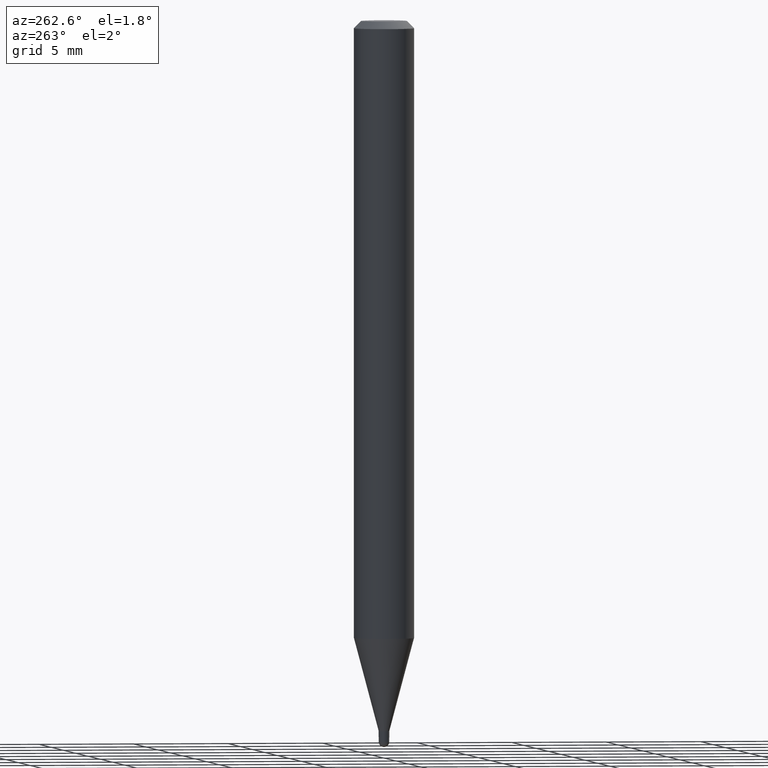
[diagram: clean part render]
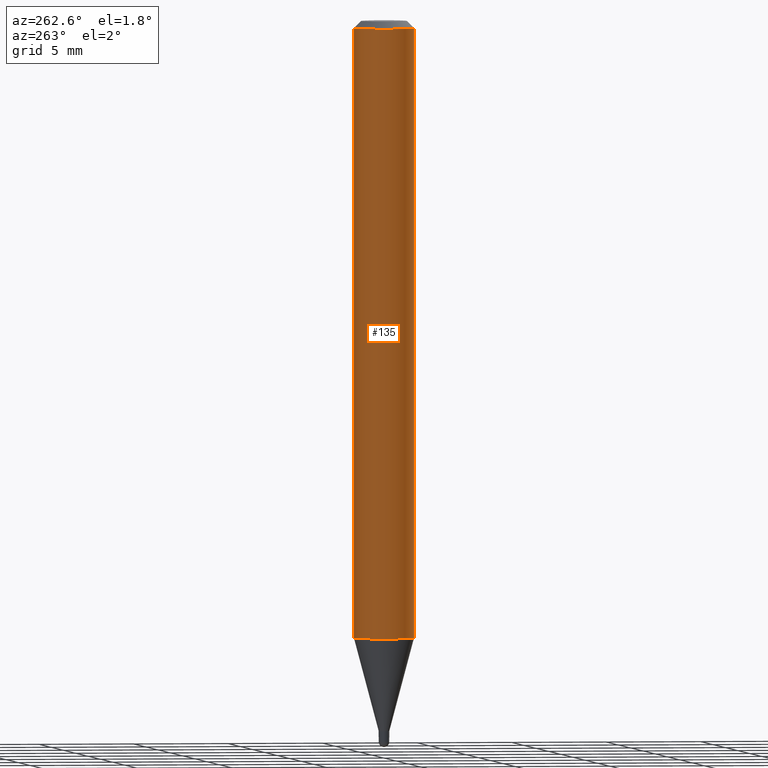
[diagram: same view with one face highlighted and labeled with its STEP entity id]
A machine part, auxiliary view. The second image highlights one B-rep face of the part: STEP entity #135.
In plain terms, the highlighted cylindrical surface (edge-blend (fillet) strip) has radius 1.5875 mm, axis along (-0, 0, 1).
Its self-contained STEP definition (entity closure, byte-faithful):
#8 = EDGE_CURVE ( 'NONE', #309, #19, #152, .T. ) ;
#9 = VECTOR ( 'NONE', #31, 39.37007874015748143 ) ;
#19 = VERTEX_POINT ( 'NONE', #406 ) ;
#20 = DIRECTION ( 'NONE',  ( -6.982962677686265922E-15, -1.000000000000000000, 3.491500812753583960E-15 ) ) ;
#26 = DIRECTION ( 'NONE',  ( -2.445455207626158790E-29, 3.491500812753583960E-15, 1.000000000000000000 ) ) ;
#27 = VERTEX_POINT ( 'NONE', #206 ) ;
#31 = DIRECTION ( 'NONE',  ( -2.445455207626158790E-29, 3.491500812753583566E-15, 1.000000000000000000 ) ) ;
#59 = ORIENTED_EDGE ( 'NONE', *, *, #203, .T. ) ;
#70 = VERTEX_POINT ( 'NONE', #404 ) ;
#71 = CARTESIAN_POINT ( 'NONE',  ( 3.117464790839112548E-29, -4.450963083274512992E-15, -1.274799383410209153 ) ) ;
#94 = AXIS2_PLACEMENT_3D ( 'NONE', #312, #268, #20 ) ;
#112 = ORIENTED_EDGE ( 'NONE', *, *, #454, .F. ) ;
#135 = ADVANCED_FACE ( 'NONE', ( #387 ), #191, .T. ) ;
#138 = ORIENTED_EDGE ( 'NONE', *, *, #305, .F. ) ;
#152 = LINE ( 'NONE', #506, #410 ) ;
#191 = CYLINDRICAL_SURFACE ( 'NONE', #94, 0.06250000000000000000 ) ;
#198 = EDGE_LOOP ( 'NONE', ( #112, #59, #415, #138 ) ) ;
#199 = CARTESIAN_POINT ( 'NONE',  ( 4.440892098500625669E-16, 0.06250000000000000000, -2.182188007970989975E-16 ) ) ;
#203 = EDGE_CURVE ( 'NONE', #27, #309, #328, .T. ) ;
#206 = CARTESIAN_POINT ( 'NONE',  ( 4.440892098500935790E-16, 0.06249999999999553135, -1.274799383410209597 ) ) ;
#208 = LINE ( 'NONE', #199, #9 ) ;
#253 = CARTESIAN_POINT ( 'NONE',  ( 3.668182811439240340E-31, -5.237251219130378726E-17, -0.01500000000000000812 ) ) ;
#268 = DIRECTION ( 'NONE',  ( -2.445455207626158790E-29, 3.491500812753583960E-15, 1.000000000000000000 ) ) ;
#282 = CARTESIAN_POINT ( 'NONE',  ( -4.364351673553605094E-16, -0.06250000000000444089, -1.274799383410208931 ) ) ;
#305 = EDGE_CURVE ( 'NONE', #70, #19, #458, .T. ) ;
#309 = VERTEX_POINT ( 'NONE', #282 ) ;
#312 = CARTESIAN_POINT ( 'NONE',  ( 0.000000000000000000, 0.000000000000000000, 0.000000000000000000 ) ) ;
#321 = AXIS2_PLACEMENT_3D ( 'NONE', #253, #447, #400 ) ;
#328 = CIRCLE ( 'NONE', #369, 0.06250000000000000000 ) ;
#353 = DIRECTION ( 'NONE',  ( -6.982962677686265922E-15, -1.000000000000000000, 4.370956789862821150E-15 ) ) ;
#369 = AXIS2_PLACEMENT_3D ( 'NONE', #71, #26, #353 ) ;
#387 = FACE_OUTER_BOUND ( 'NONE', #198, .T. ) ;
#400 = DIRECTION ( 'NONE',  ( -6.982962677686265922E-15, -1.000000000000000000, 3.483106191921935554E-15 ) ) ;
#404 = CARTESIAN_POINT ( 'NONE',  ( 4.440892098500939734E-16, 0.06249999999999995143, -0.01500000000000022669 ) ) ;
#406 = CARTESIAN_POINT ( 'NONE',  ( -4.364351673553912750E-16, -0.06250000000000005551, -0.01499999999999979128 ) ) ;
#410 = VECTOR ( 'NONE', #442, 39.37007874015748143 ) ;
#415 = ORIENTED_EDGE ( 'NONE', *, *, #8, .T. ) ;
#442 = DIRECTION ( 'NONE',  ( -2.445455207626158790E-29, 3.491500812753583566E-15, 1.000000000000000000 ) ) ;
#447 = DIRECTION ( 'NONE',  ( -2.445455207626158790E-29, 3.491500812753583960E-15, 1.000000000000000000 ) ) ;
#454 = EDGE_CURVE ( 'NONE', #27, #70, #208, .T. ) ;
#458 = CIRCLE ( 'NONE', #321, 0.06250000000000000000 ) ;
#506 = CARTESIAN_POINT ( 'NONE',  ( -4.364351673553916201E-16, -0.06250000000000000000, 2.182188007970989975E-16 ) ) ;